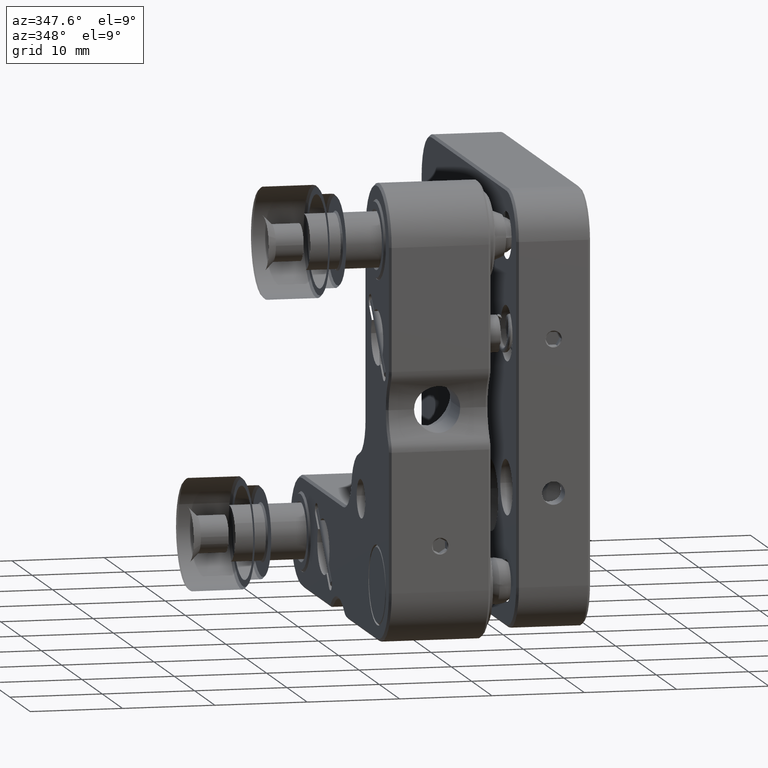
[diagram: clean part render]
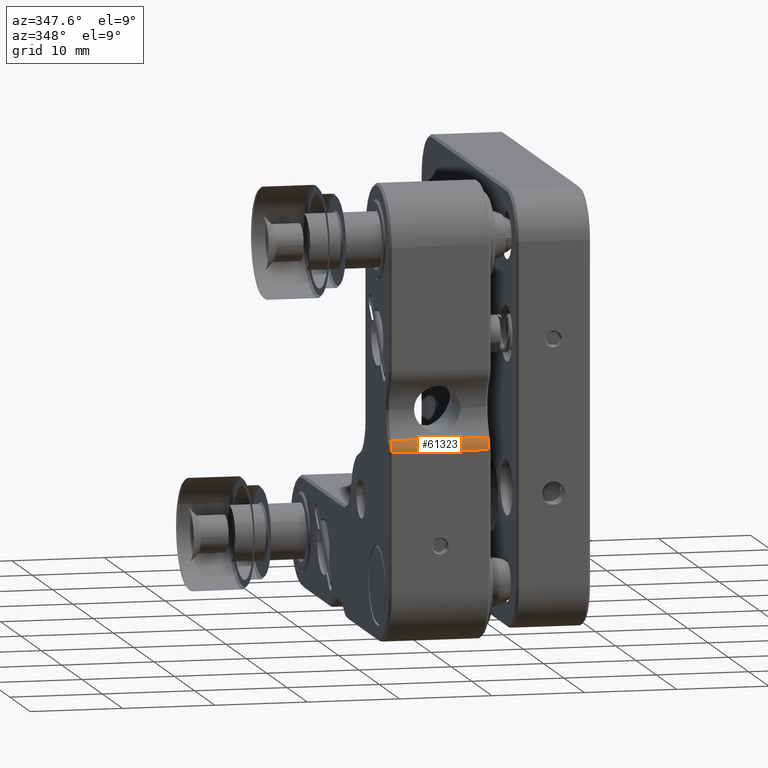
[diagram: same view with one face highlighted and labeled with its STEP entity id]
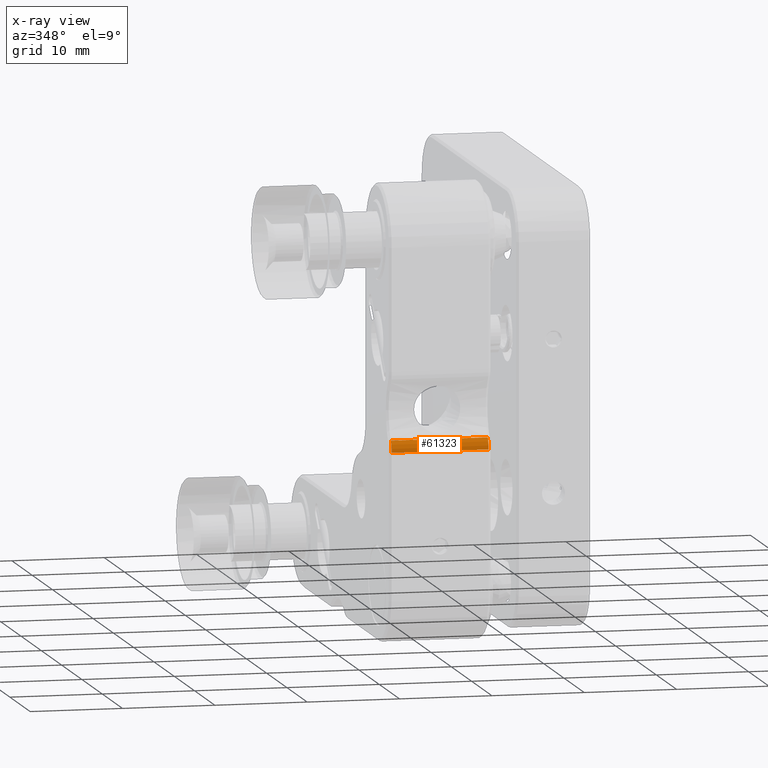
[diagram: x-ray of the same camera — body ghosted, the highlighted face saturated]
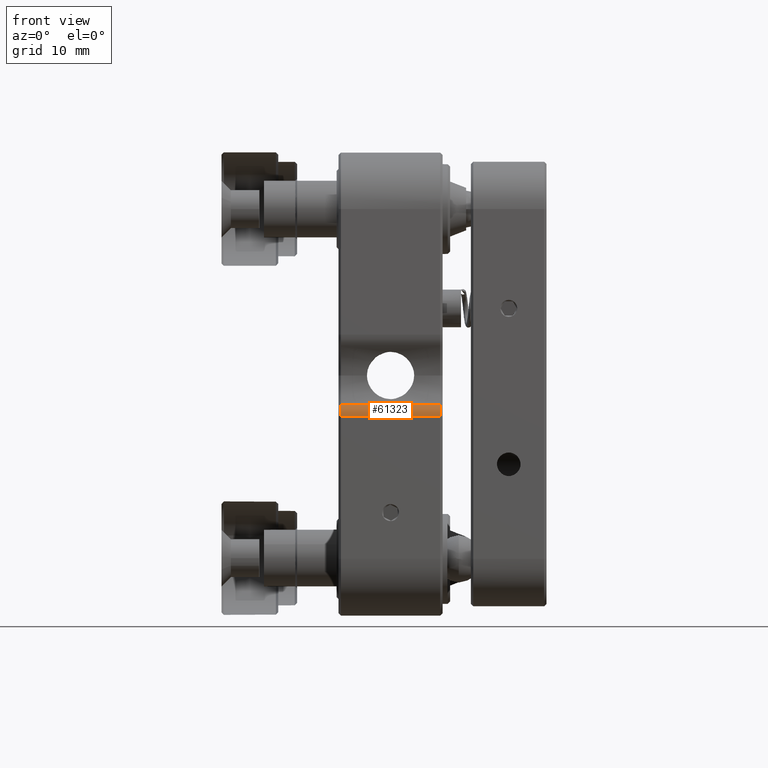
[diagram: same view with one face highlighted and labeled with its STEP entity id]
A machine part, auxiliary view. The second image highlights one B-rep face of the part: STEP entity #61323.
The next image is the same camera in x-ray: the body ghosted, the highlighted face saturated — about 0% of this face is hidden behind the body in this view.
A second angle (front view) of the same face is appended — the face is thin or edge-on in the first view.
In plain terms, the highlighted face is a freeform B-spline surface patch.
Its self-contained STEP definition (entity closure, byte-faithful):
#2276 = EDGE_CURVE ( 'NONE', #7772, #25855, #50761, .T. ) ;
#3329 = EDGE_CURVE ( 'NONE', #7102, #23280, #6536, .T. ) ;
#3724 = CARTESIAN_POINT ( 'NONE',  ( 6.301200000000012125, -20.49999999999997868, -5.430127018922168425 ) ) ;
#3842 = CARTESIAN_POINT ( 'NONE',  ( 5.250000000000000000, -24.50000000000000000, -3.430127018922204840 ) ) ;
#4035 = CARTESIAN_POINT ( 'NONE',  ( 6.301200000000012125, -20.49999999999997868, -1.430127018922165538 ) ) ;
#6536 =( BOUNDED_CURVE ( )  B_SPLINE_CURVE ( 2, ( #33795, #34108, #23620 ),
 .UNSPECIFIED., .F., .T. ) 
 B_SPLINE_CURVE_WITH_KNOTS ( ( 3, 3 ),
 ( 0.000000000000000000, 1.000000000000000000 ),
 .UNSPECIFIED. ) 
 CURVE ( )  GEOMETRIC_REPRESENTATION_ITEM ( )  RATIONAL_B_SPLINE_CURVE ( ( 0.8565544223147989467, 0.8745174293343991323, 1.000000000000002220 ) ) 
 REPRESENTATION_ITEM ( '' )  );
#7102 = VERTEX_POINT ( 'NONE', #11819 ) ;
#7772 = VERTEX_POINT ( 'NONE', #3842 ) ;
#9118 = CARTESIAN_POINT ( 'NONE',  ( 6.301199999999999690, -20.50000000000000000, -3.430127018922169757 ) ) ;
#11819 = CARTESIAN_POINT ( 'NONE',  ( -5.250000000000000000, -24.07142857142854808, -2.192947870658704890 ) ) ;
#13272 = FACE_OUTER_BOUND ( 'NONE', #33796, .T. ) ;
#13592 = CARTESIAN_POINT ( 'NONE',  ( -6.301199999999999690, -24.50000000000000000, -3.430127018922169757 ) ) ;
#13909 = CARTESIAN_POINT ( 'NONE',  ( 6.301199999999999690, -22.50000000000000000, -5.430127018922170201 ) ) ;
#14639 = CARTESIAN_POINT ( 'NONE',  ( -5.250000000000000000, -24.50000000000000000, -3.430127018922184856 ) ) ;
#14833 = CARTESIAN_POINT ( 'NONE',  ( 5.250000000000000000, -24.07142857142859427, -2.192947870658700449 ) ) ;
#17039 = CARTESIAN_POINT ( 'NONE',  ( 5.250000000000000000, -24.07142857142859427, -2.192947870658700449 ) ) ;
#18367 = CARTESIAN_POINT ( 'NONE',  ( -6.301199999999999690, -22.50000000000000000, -5.430127018922189741 ) ) ;
#18681 = CARTESIAN_POINT ( 'NONE',  ( -6.301199999999983703, -20.49999999999995381, -1.430127018922145776 ) ) ;
#20876 = EDGE_CURVE ( 'NONE', #7772, #23280, #48200, .T. ) ;
#22609 =( BOUNDED_CURVE ( )  B_SPLINE_CURVE ( 1, ( #29464, #14833 ),
 .UNSPECIFIED., .F., .F. ) 
 B_SPLINE_CURVE_WITH_KNOTS ( ( 2, 2 ),
 ( 0.000000000000000000, 1.000000000000000000 ),
 .UNSPECIFIED. ) 
 CURVE ( )  GEOMETRIC_REPRESENTATION_ITEM ( )  RATIONAL_B_SPLINE_CURVE ( ( 0.8565544223147983915, 0.8565544223147983915 ) ) 
 REPRESENTATION_ITEM ( '' )  );
#23280 = VERTEX_POINT ( 'NONE', #14639 ) ;
#23454 = CARTESIAN_POINT ( 'NONE',  ( -6.301199999999983703, -20.49999999999995381, -5.430127018922189741 ) ) ;
#23620 = CARTESIAN_POINT ( 'NONE',  ( -5.250000000000000000, -24.50000000000000000, -3.430127018922184856 ) ) ;
#25855 = VERTEX_POINT ( 'NONE', #38590 ) ;
#27419 = ORIENTED_EDGE ( 'NONE', *, *, #20876, .F. ) ;
#28231 = CARTESIAN_POINT ( 'NONE',  ( 6.301199999999999690, -22.50000000000000000, -1.430127018922165982 ) ) ;
#28540 = CARTESIAN_POINT ( 'NONE',  ( -6.301199999999999690, -20.50000000000000000, -3.430127018922169757 ) ) ;
#29464 = CARTESIAN_POINT ( 'NONE',  ( -5.250000000000000000, -24.07142857142854453, -2.192947870658704890 ) ) ;
#33000 = CARTESIAN_POINT ( 'NONE',  ( 6.301199999999998802, -24.49999999999996447, -1.430127018922165538 ) ) ;
#33310 = CARTESIAN_POINT ( 'NONE',  ( -6.301199999999999690, -20.50000000000000000, -3.430127018922169757 ) ) ;
#33795 = CARTESIAN_POINT ( 'NONE',  ( -5.250000000000000000, -24.07142857142854453, -2.192947870658704890 ) ) ;
#33796 = EDGE_LOOP ( 'NONE', ( #37937, #36231, #27419, #38036 ) ) ;
#34108 = CARTESIAN_POINT ( 'NONE',  ( -5.249999999999999112, -24.49999999999999289, -2.737306695894632380 ) ) ;
#34112 = CARTESIAN_POINT ( 'NONE',  ( -5.250000000000000000, -24.50000000000000000, -3.430127018922184856 ) ) ;
#36231 = ORIENTED_EDGE ( 'NONE', *, *, #3329, .T. ) ;
#37784 = CARTESIAN_POINT ( 'NONE',  ( -6.301199999999998802, -24.49999999999996447, -5.430127018922189741 ) ) ;
#37937 = ORIENTED_EDGE ( 'NONE', *, *, #47053, .F. ) ;
#38036 = ORIENTED_EDGE ( 'NONE', *, *, #2276, .T. ) ;
#38101 = CARTESIAN_POINT ( 'NONE',  ( 6.301199999999999690, -20.50000000000000000, -3.430127018922169757 ) ) ;
#38590 = CARTESIAN_POINT ( 'NONE',  ( 5.250000000000000000, -24.07142857142859782, -2.192947870658700449 ) ) ;
#47053 = EDGE_CURVE ( 'NONE', #7102, #25855, #22609, .T. ) ;
#47638 = CARTESIAN_POINT ( 'NONE',  ( -6.301199999999999690, -22.50000000000000000, -1.430127018922145998 ) ) ;
#48200 = B_SPLINE_CURVE_WITH_KNOTS ( 'NONE', 1,
 ( #50532, #34112 ),
 .UNSPECIFIED., .F., .F.,
 ( 2, 2 ),
 ( 0.000000000000000000, 1.000000000000000000 ),
 .UNSPECIFIED. ) ;
#50532 = CARTESIAN_POINT ( 'NONE',  ( 5.250000000000000000, -24.50000000000000000, -3.430127018922204840 ) ) ;
#50755 = CARTESIAN_POINT ( 'NONE',  ( 5.249999999999999112, -24.50000000000004619, -2.737306695894698105 ) ) ;
#50761 =( BOUNDED_CURVE ( )  B_SPLINE_CURVE ( 2, ( #61549, #50755, #17039 ),
 .UNSPECIFIED., .F., .T. ) 
 B_SPLINE_CURVE_WITH_KNOTS ( ( 3, 3 ),
 ( 0.000000000000000000, 1.000000000000000000 ),
 .UNSPECIFIED. ) 
 CURVE ( )  GEOMETRIC_REPRESENTATION_ITEM ( )  RATIONAL_B_SPLINE_CURVE ( ( 1.000000000000015987, 0.8745174293344010197, 0.8565544223147965042 ) ) 
 REPRESENTATION_ITEM ( '' )  );
#50775 =( BOUNDED_SURFACE ( )  B_SPLINE_SURFACE ( 2, 1, ( 
 ( #9118, #33310 ),
 ( #3724, #23454 ),
 ( #13909, #18367 ),
 ( #61315, #37784 ),
 ( #57173, #13592 ),
 ( #33000, #52391 ),
 ( #28231, #47638 ),
 ( #4035, #18681 ),
 ( #38101, #28540 ) ),
 .UNSPECIFIED., .T., .F., .T. ) 
 B_SPLINE_SURFACE_WITH_KNOTS ( ( 3, 2, 2, 2, 3 ),
 ( 2, 2 ),
 ( 0.000000000000000000, 1.570796326794895004, 3.141592653589795336, 4.712388980384689674, 6.283185307179590673 ),
 ( 0.000000000000000000, 12.60239999999999938 ),
 .UNSPECIFIED. ) 
 GEOMETRIC_REPRESENTATION_ITEM ( )  RATIONAL_B_SPLINE_SURFACE ( (
 ( 1.000000000000000000, 1.000000000000000000),
 ( 0.7071067811865480168, 0.7071067811865480168),
 ( 1.000000000000000000, 1.000000000000000000),
 ( 0.7071067811865480168, 0.7071067811865480168),
 ( 1.000000000000000000, 1.000000000000000000),
 ( 0.7071067811865480168, 0.7071067811865480168),
 ( 1.000000000000000000, 1.000000000000000000),
 ( 0.7071067811865480168, 0.7071067811865480168),
 ( 1.000000000000000000, 1.000000000000000000) ) ) 
 REPRESENTATION_ITEM ( '' )  SURFACE ( )  );
#52391 = CARTESIAN_POINT ( 'NONE',  ( -6.301199999999998802, -24.49999999999996447, -1.430127018922145776 ) ) ;
#57173 = CARTESIAN_POINT ( 'NONE',  ( 6.301199999999999690, -24.50000000000000000, -3.430127018922169757 ) ) ;
#61315 = CARTESIAN_POINT ( 'NONE',  ( 6.301199999999998802, -24.49999999999996447, -5.430127018922168425 ) ) ;
#61323 = ADVANCED_FACE ( 'NONE', ( #13272 ), #50775, .T. ) ;
#61549 = CARTESIAN_POINT ( 'NONE',  ( 5.250000000000000000, -24.50000000000000000, -3.430127018922204840 ) ) ;